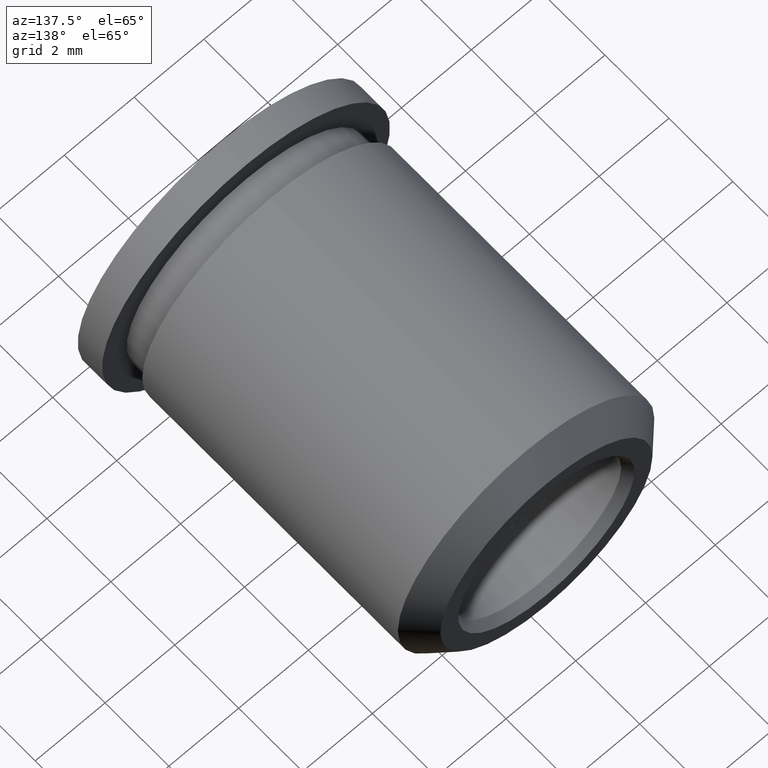
[diagram: clean part render]
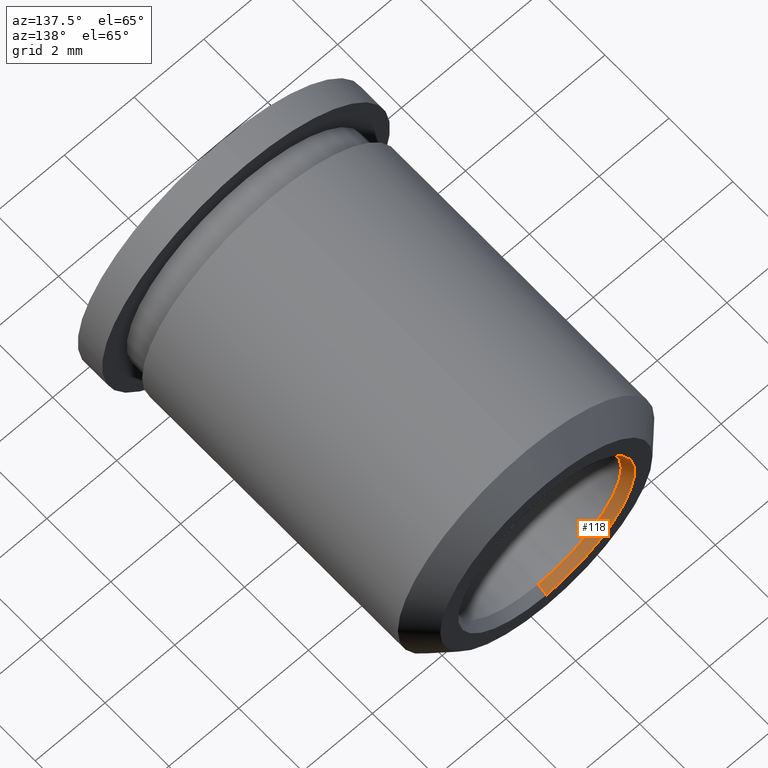
[diagram: same view with one face highlighted and labeled with its STEP entity id]
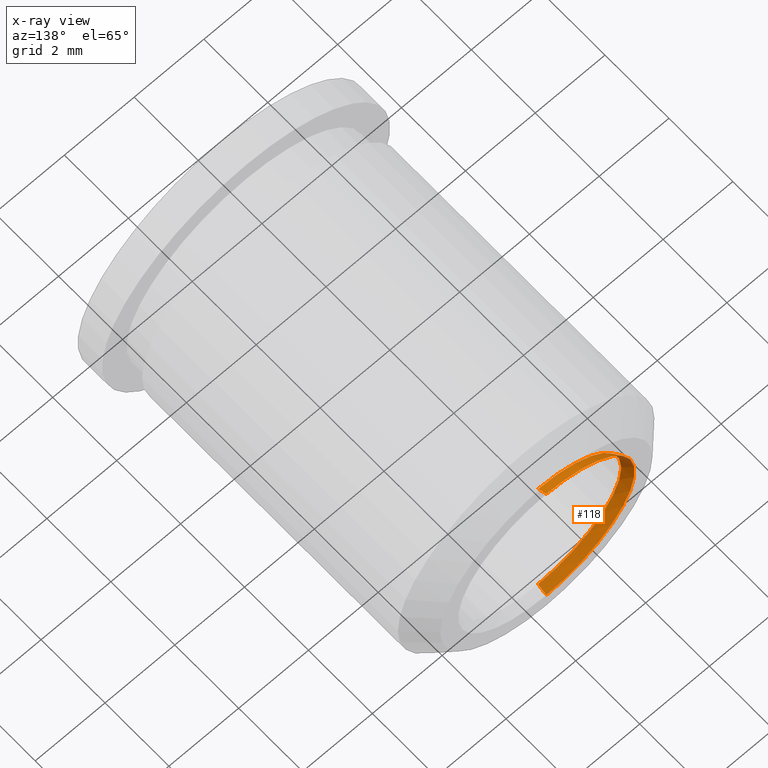
[diagram: x-ray of the same camera — body ghosted, the highlighted face saturated]
A machine part, auxiliary view. The second image highlights one B-rep face of the part: STEP entity #118.
The next image is the same camera in x-ray: the body ghosted, the highlighted face saturated — about 0% of this face is hidden behind the body in this view.
In plain terms, the highlighted conical surface has half-angle 30 deg.
Its self-contained STEP definition (entity closure, byte-faithful):
#27 = ORIENTED_EDGE ( 'NONE', *, *, #82, .F. ) ;
#31 = ORIENTED_EDGE ( 'NONE', *, *, #128, .F. ) ;
#73 = EDGE_CURVE ( 'NONE', #89, #96, #398, .T. ) ;
#76 = EDGE_CURVE ( 'NONE', #280, #89, #520, .T. ) ;
#82 = EDGE_CURVE ( 'NONE', #236, #96, #561, .T. ) ;
#89 = VERTEX_POINT ( 'NONE', #482 ) ;
#96 = VERTEX_POINT ( 'NONE', #475 ) ;
#97 = ORIENTED_EDGE ( 'NONE', *, *, #73, .T. ) ;
#105 = EDGE_LOOP ( 'NONE', ( #31, #114, #97, #27 ) ) ;
#114 = ORIENTED_EDGE ( 'NONE', *, *, #76, .T. ) ;
#118 = ADVANCED_FACE ( 'NONE', ( #460 ), #615, .F. ) ;
#128 = EDGE_CURVE ( 'NONE', #280, #236, #604, .T. ) ;
#236 = VERTEX_POINT ( 'NONE', #715 ) ;
#280 = VERTEX_POINT ( 'NONE', #717 ) ;
#397 = DIRECTION ( 'NONE',  ( 0.0000000000000000000, 0.0000000000000000000, 1.000000000000000000 ) ) ;
#398 = CIRCLE ( 'NONE', #401, 2.527896968374166300 ) ;
#399 = DIRECTION ( 'NONE',  ( 0.0000000000000000000, 1.000000000000000000, 0.0000000000000000000 ) ) ;
#400 = CARTESIAN_POINT ( 'NONE',  ( 1.508592567273786700E-015, 5.079999999999999200, 0.0000000000000000000 ) ) ;
#401 = AXIS2_PLACEMENT_3D ( 'NONE', #400, #399, #397 ) ;
#447 = DIRECTION ( 'NONE',  ( 6.123233995736814100E-017, 0.8660254037844364900, -0.5000000000000037700 ) ) ;
#460 = FACE_OUTER_BOUND ( 'NONE', #105, .T. ) ;
#475 = CARTESIAN_POINT ( 'NONE',  ( 1.508592567273786700E-015, 5.079999999999999200, 2.527896968374166300 ) ) ;
#482 = CARTESIAN_POINT ( 'NONE',  ( 1.818170660363158800E-015, 5.079999999999999200, -2.527896968374166300 ) ) ;
#518 = VECTOR ( 'NONE', #447, 999.9999999999998900 ) ;
#519 = CARTESIAN_POINT ( 'NONE',  ( 1.800211586320750200E-015, 4.826000000000000500, -2.381250000000000500 ) ) ;
#520 = LINE ( 'NONE', #519, #518 ) ;
#558 = DIRECTION ( 'NONE',  ( 0.0000000000000000000, 0.8660254037844364900, 0.5000000000000037700 ) ) ;
#559 = VECTOR ( 'NONE', #558, 999.9999999999998900 ) ;
#560 = CARTESIAN_POINT ( 'NONE',  ( 1.508592567273786700E-015, 4.826000000000000500, 2.381250000000000500 ) ) ;
#561 = LINE ( 'NONE', #560, #559 ) ;
#576 = CARTESIAN_POINT ( 'NONE',  ( 1.508592567273786700E-015, 4.826000000000000500, 0.0000000000000000000 ) ) ;
#577 = AXIS2_PLACEMENT_3D ( 'NONE', #576, #623, #622 ) ;
#598 = AXIS2_PLACEMENT_3D ( 'NONE', #609, #599, #616 ) ;
#599 = DIRECTION ( 'NONE',  ( 0.0000000000000000000, 1.000000000000000000, 0.0000000000000000000 ) ) ;
#604 = CIRCLE ( 'NONE', #577, 2.381250000000000500 ) ;
#609 = CARTESIAN_POINT ( 'NONE',  ( 1.508592567273786700E-015, 4.826000000000000500, 0.0000000000000000000 ) ) ;
#615 = CONICAL_SURFACE ( 'NONE', #598, 2.381250000000000500, 0.5235987755983032600 ) ;
#616 = DIRECTION ( 'NONE',  ( 0.0000000000000000000, 0.0000000000000000000, 1.000000000000000000 ) ) ;
#622 = DIRECTION ( 'NONE',  ( 0.0000000000000000000, 0.0000000000000000000, 1.000000000000000000 ) ) ;
#623 = DIRECTION ( 'NONE',  ( 0.0000000000000000000, 1.000000000000000000, 0.0000000000000000000 ) ) ;
#715 = CARTESIAN_POINT ( 'NONE',  ( 1.508592567273786700E-015, 4.826000000000000500, 2.381250000000000500 ) ) ;
#717 = CARTESIAN_POINT ( 'NONE',  ( 1.809191123341954300E-015, 4.826000000000000500, -2.381250000000000500 ) ) ;